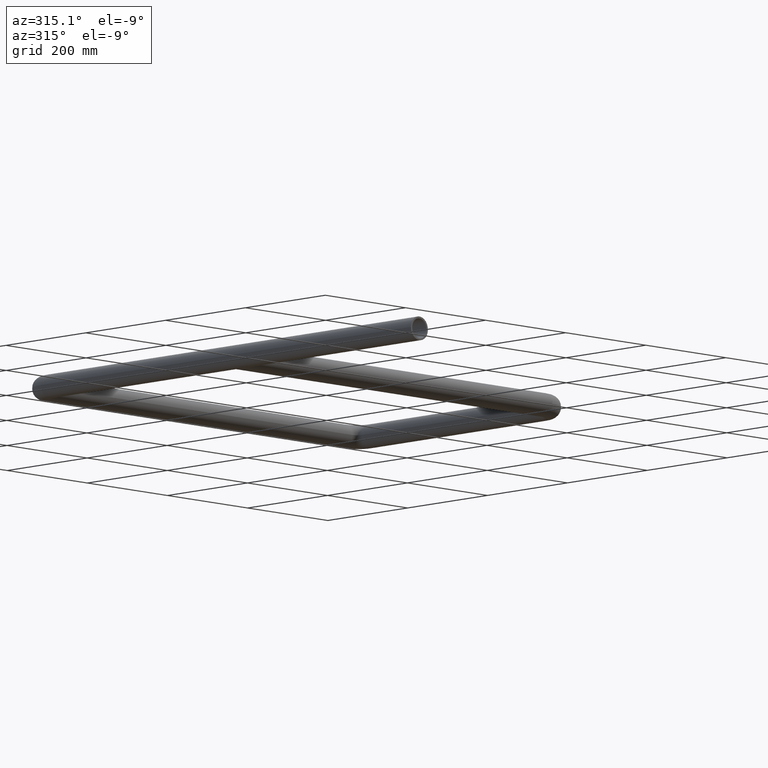
[diagram: clean part render]
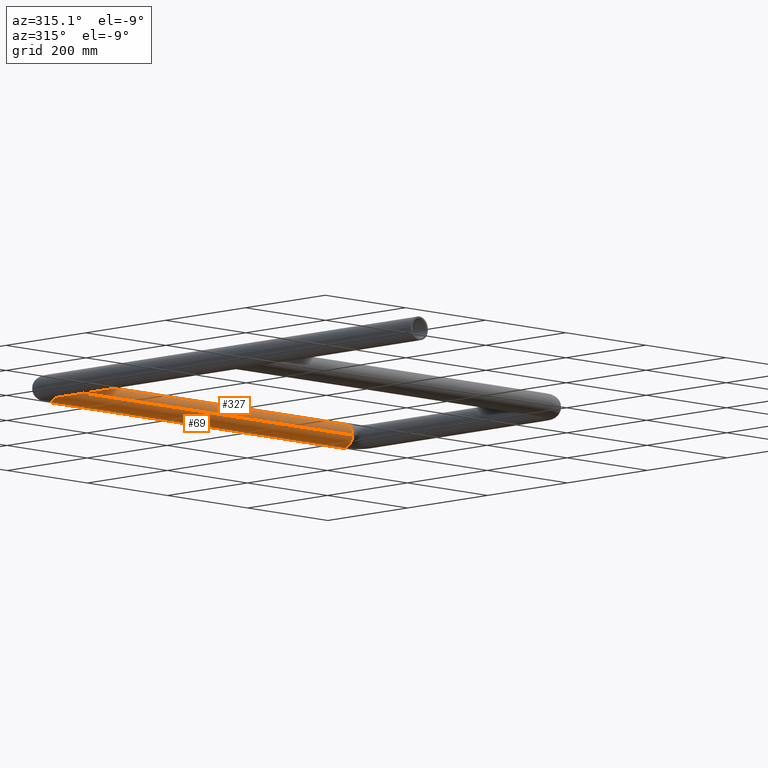
[diagram: same view with one multi-face feature highlighted, each face labeled with its STEP entity id]
A machine part, auxiliary view. The highlighted faces form ONE feature: a constant-radius fillet chain: 2 tangent blend faces with common blend radius 21.2 mm. The faces share edges in the B-rep.
Their STEP definitions:
[1] entity #327 (Cylinder):
#30 = VECTOR ( 'NONE', #83, 1000.000000000000000 ) ;
#38 = DIRECTION ( 'NONE',  ( -1.000000000000000000, 6.033820786006284731E-16, -0.000000000000000000 ) ) ;
#56 = CARTESIAN_POINT ( 'NONE',  ( -368.0000000000000000, 959.0000000000001137, 0.000000000000000000 ) ) ;
#80 = AXIS2_PLACEMENT_3D ( 'NONE', #56, #1249, #1043 ) ;
#83 = DIRECTION ( 'NONE',  ( -1.000000000000000000, 6.033820786006284731E-16, -0.000000000000000000 ) ) ;
#127 = EDGE_CURVE ( 'NONE', #851, #490, #617, .T. ) ;
#143 = DIRECTION ( 'NONE',  ( 0.000000000000000000, 1.000000000000000000, 0.000000000000000000 ) ) ;
#163 = ORIENTED_EDGE ( 'NONE', *, *, #871, .T. ) ;
#177 = DIRECTION ( 'NONE',  ( 0.000000000000000000, -1.000000000000000000, 0.000000000000000000 ) ) ;
#264 = CARTESIAN_POINT ( 'NONE',  ( 368.0000000000001137, 958.9999999999996589, 0.000000000000000000 ) ) ;
#327 = ADVANCED_FACE ( 'NONE', ( #842 ), #495, .T. ) ;
#370 = EDGE_LOOP ( 'NONE', ( #422, #1195, #163, #529 ) ) ;
#422 = ORIENTED_EDGE ( 'NONE', *, *, #1370, .F. ) ;
#487 = VECTOR ( 'NONE', #38, 1000.000000000000000 ) ;
#490 = VERTEX_POINT ( 'NONE', #575 ) ;
#495 = CYLINDRICAL_SURFACE ( 'NONE', #1187, 21.19999999999999574 ) ;
#529 = ORIENTED_EDGE ( 'NONE', *, *, #127, .F. ) ;
#575 = CARTESIAN_POINT ( 'NONE',  ( -368.0000000000000000, 937.8000000000000682, 0.000000000000000000 ) ) ;
#613 = CARTESIAN_POINT ( 'NONE',  ( 368.0000000000001137, 937.7999999999996135, 0.000000000000000000 ) ) ;
#617 = LINE ( 'NONE', #1042, #30 ) ;
#694 = VERTEX_POINT ( 'NONE', #1311 ) ;
#773 = CIRCLE ( 'NONE', #1061, 21.19999999999999574 ) ;
#842 = FACE_OUTER_BOUND ( 'NONE', #370, .T. ) ;
#851 = VERTEX_POINT ( 'NONE', #613 ) ;
#857 = VERTEX_POINT ( 'NONE', #1127 ) ;
#871 = EDGE_CURVE ( 'NONE', #694, #490, #1150, .T. ) ;
#978 = LINE ( 'NONE', #982, #487 ) ;
#982 = CARTESIAN_POINT ( 'NONE',  ( 368.0000000000001137, 980.1999999999995907, 2.596251214192388770E-15 ) ) ;
#984 = DIRECTION ( 'NONE',  ( 1.000000000000000000, -6.033820786006284731E-16, 0.000000000000000000 ) ) ;
#1042 = CARTESIAN_POINT ( 'NONE',  ( 368.0000000000001137, 937.7999999999996135, 0.000000000000000000 ) ) ;
#1043 = DIRECTION ( 'NONE',  ( 0.000000000000000000, 1.000000000000000000, 0.000000000000000000 ) ) ;
#1061 = AXIS2_PLACEMENT_3D ( 'NONE', #264, #984, #143 ) ;
#1127 = CARTESIAN_POINT ( 'NONE',  ( 368.0000000000001137, 980.1999999999995907, 2.596251214192389164E-15 ) ) ;
#1130 = DIRECTION ( 'NONE',  ( -1.000000000000000000, 6.033820786006284731E-16, -0.000000000000000000 ) ) ;
#1138 = EDGE_CURVE ( 'NONE', #857, #694, #978, .T. ) ;
#1150 = CIRCLE ( 'NONE', #80, 21.19999999999999574 ) ;
#1187 = AXIS2_PLACEMENT_3D ( 'NONE', #1264, #1130, #177 ) ;
#1195 = ORIENTED_EDGE ( 'NONE', *, *, #1138, .T. ) ;
#1249 = DIRECTION ( 'NONE',  ( 1.000000000000000000, -6.033820786006284731E-16, 0.000000000000000000 ) ) ;
#1264 = CARTESIAN_POINT ( 'NONE',  ( 368.0000000000001137, 958.9999999999996589, 0.000000000000000000 ) ) ;
#1311 = CARTESIAN_POINT ( 'NONE',  ( -368.0000000000000000, 980.2000000000000455, 2.596251214192416380E-15 ) ) ;
#1370 = EDGE_CURVE ( 'NONE', #857, #851, #773, .T. ) ;
[2] entity #69 (Cylinder):
#10 = CIRCLE ( 'NONE', #187, 21.19999999999999574 ) ;
#22 = EDGE_CURVE ( 'NONE', #490, #694, #10, .T. ) ;
#30 = VECTOR ( 'NONE', #83, 1000.000000000000000 ) ;
#38 = DIRECTION ( 'NONE',  ( -1.000000000000000000, 6.033820786006284731E-16, -0.000000000000000000 ) ) ;
#69 = ADVANCED_FACE ( 'NONE', ( #500 ), #1347, .T. ) ;
#83 = DIRECTION ( 'NONE',  ( -1.000000000000000000, 6.033820786006284731E-16, -0.000000000000000000 ) ) ;
#113 = ORIENTED_EDGE ( 'NONE', *, *, #127, .T. ) ;
#127 = EDGE_CURVE ( 'NONE', #851, #490, #617, .T. ) ;
#157 = CARTESIAN_POINT ( 'NONE',  ( 368.0000000000001137, 958.9999999999996589, 0.000000000000000000 ) ) ;
#166 = CIRCLE ( 'NONE', #958, 21.19999999999999574 ) ;
#174 = CARTESIAN_POINT ( 'NONE',  ( -368.0000000000000000, 959.0000000000001137, 0.000000000000000000 ) ) ;
#187 = AXIS2_PLACEMENT_3D ( 'NONE', #174, #1365, #312 ) ;
#281 = AXIS2_PLACEMENT_3D ( 'NONE', #1260, #1368, #402 ) ;
#312 = DIRECTION ( 'NONE',  ( 0.000000000000000000, 1.000000000000000000, 0.000000000000000000 ) ) ;
#402 = DIRECTION ( 'NONE',  ( 0.000000000000000000, -1.000000000000000000, 0.000000000000000000 ) ) ;
#458 = DIRECTION ( 'NONE',  ( 1.000000000000000000, -6.033820786006284731E-16, 0.000000000000000000 ) ) ;
#487 = VECTOR ( 'NONE', #38, 1000.000000000000000 ) ;
#490 = VERTEX_POINT ( 'NONE', #575 ) ;
#500 = FACE_OUTER_BOUND ( 'NONE', #1032, .T. ) ;
#550 = ORIENTED_EDGE ( 'NONE', *, *, #1138, .F. ) ;
#575 = CARTESIAN_POINT ( 'NONE',  ( -368.0000000000000000, 937.8000000000000682, 0.000000000000000000 ) ) ;
#578 = DIRECTION ( 'NONE',  ( 0.000000000000000000, 1.000000000000000000, 0.000000000000000000 ) ) ;
#596 = ORIENTED_EDGE ( 'NONE', *, *, #1373, .F. ) ;
#613 = CARTESIAN_POINT ( 'NONE',  ( 368.0000000000001137, 937.7999999999996135, 0.000000000000000000 ) ) ;
#617 = LINE ( 'NONE', #1042, #30 ) ;
#628 = ORIENTED_EDGE ( 'NONE', *, *, #22, .T. ) ;
#694 = VERTEX_POINT ( 'NONE', #1311 ) ;
#851 = VERTEX_POINT ( 'NONE', #613 ) ;
#857 = VERTEX_POINT ( 'NONE', #1127 ) ;
#958 = AXIS2_PLACEMENT_3D ( 'NONE', #157, #458, #578 ) ;
#978 = LINE ( 'NONE', #982, #487 ) ;
#982 = CARTESIAN_POINT ( 'NONE',  ( 368.0000000000001137, 980.1999999999995907, 2.596251214192388770E-15 ) ) ;
#1032 = EDGE_LOOP ( 'NONE', ( #550, #596, #113, #628 ) ) ;
#1042 = CARTESIAN_POINT ( 'NONE',  ( 368.0000000000001137, 937.7999999999996135, 0.000000000000000000 ) ) ;
#1127 = CARTESIAN_POINT ( 'NONE',  ( 368.0000000000001137, 980.1999999999995907, 2.596251214192389164E-15 ) ) ;
#1138 = EDGE_CURVE ( 'NONE', #857, #694, #978, .T. ) ;
#1260 = CARTESIAN_POINT ( 'NONE',  ( 368.0000000000001137, 958.9999999999996589, 0.000000000000000000 ) ) ;
#1311 = CARTESIAN_POINT ( 'NONE',  ( -368.0000000000000000, 980.2000000000000455, 2.596251214192416380E-15 ) ) ;
#1347 = CYLINDRICAL_SURFACE ( 'NONE', #281, 21.19999999999999574 ) ;
#1365 = DIRECTION ( 'NONE',  ( 1.000000000000000000, -6.033820786006284731E-16, 0.000000000000000000 ) ) ;
#1368 = DIRECTION ( 'NONE',  ( -1.000000000000000000, 6.033820786006284731E-16, -0.000000000000000000 ) ) ;
#1373 = EDGE_CURVE ( 'NONE', #851, #857, #166, .T. ) ;